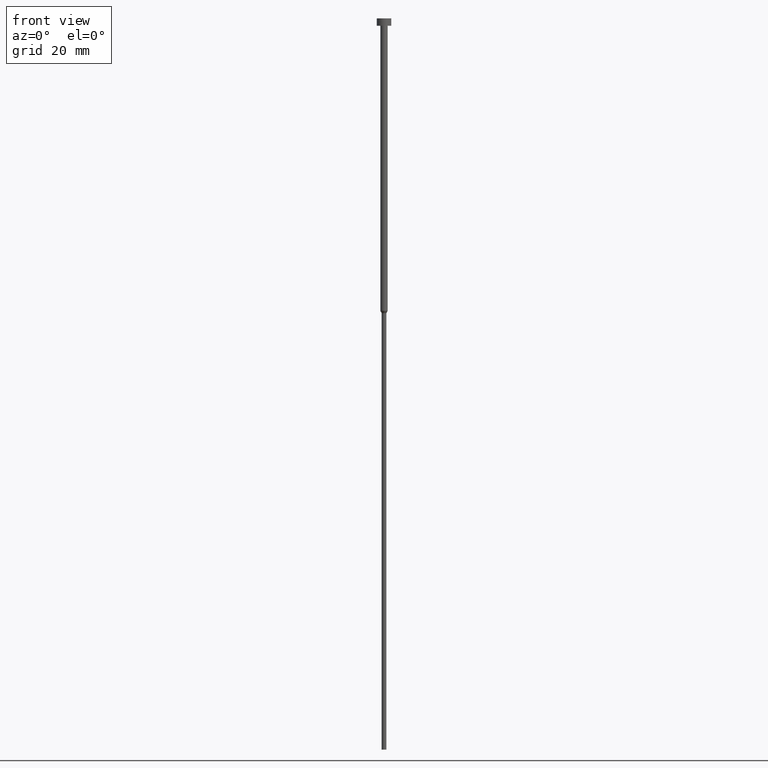
[diagram: clean part render]
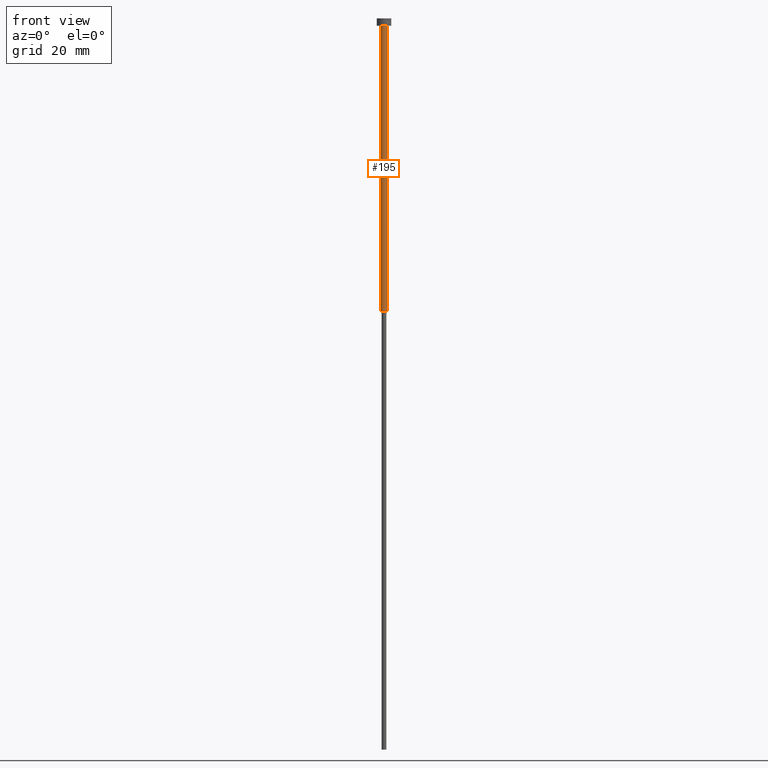
[diagram: same view with one face highlighted and labeled with its STEP entity id]
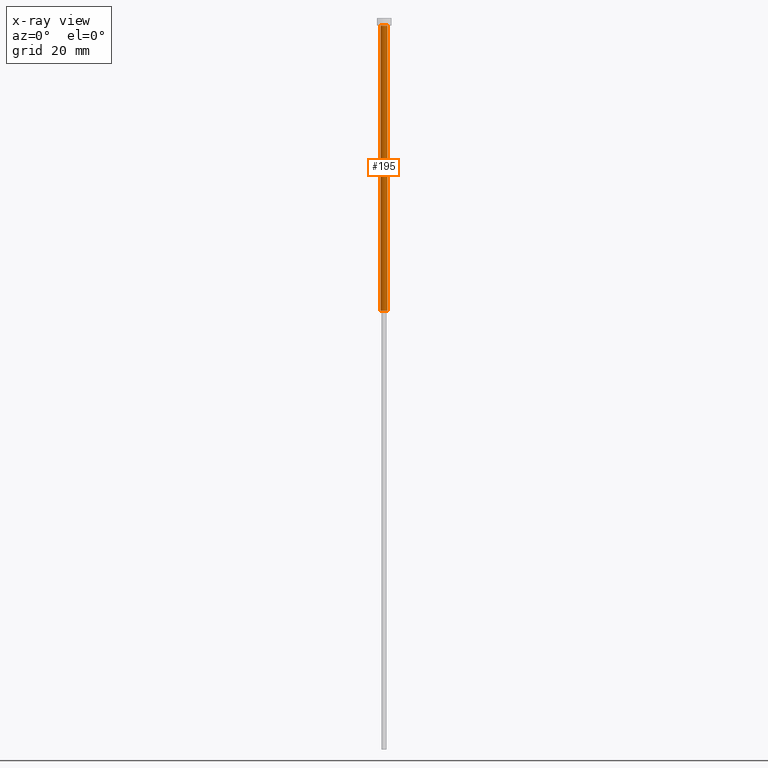
[diagram: x-ray of the same camera — body ghosted, the highlighted face saturated]
A machine part, front view. The second image highlights one B-rep face of the part: STEP entity #195.
The next image is the same camera in x-ray: the body ghosted, the highlighted face saturated — about 0% of this face is hidden behind the body in this view.
In plain terms, the highlighted cylindrical surface (edge-blend (fillet) strip) has radius 1 mm, axis along (-0, -0, 1).
Its self-contained STEP definition (entity closure, byte-faithful):
#4 = ORIENTED_EDGE ( 'NONE', *, *, #129, .T. ) ;
#6 = VERTEX_POINT ( 'NONE', #277 ) ;
#24 = DIRECTION ( 'NONE',  ( 1.000000000000000000, 0.000000000000000000, 0.000000000000000000 ) ) ;
#26 = LINE ( 'NONE', #250, #78 ) ;
#29 = LINE ( 'NONE', #307, #135 ) ;
#44 = CIRCLE ( 'NONE', #247, 1.000000000000003109 ) ;
#52 = ORIENTED_EDGE ( 'NONE', *, *, #167, .F. ) ;
#53 = CARTESIAN_POINT ( 'NONE',  ( 0.000000000000000000, 0.000000000000000000, -2.000000000000000444 ) ) ;
#62 = EDGE_CURVE ( 'NONE', #348, #6, #29, .T. ) ;
#66 = DIRECTION ( 'NONE',  ( 1.000000000000000000, 0.000000000000000000, 0.000000000000000000 ) ) ;
#78 = VECTOR ( 'NONE', #147, 1000.000000000000000 ) ;
#96 = FACE_OUTER_BOUND ( 'NONE', #193, .T. ) ;
#114 = EDGE_CURVE ( 'NONE', #330, #117, #26, .T. ) ;
#117 = VERTEX_POINT ( 'NONE', #257 ) ;
#129 = EDGE_CURVE ( 'NONE', #348, #330, #44, .T. ) ;
#135 = VECTOR ( 'NONE', #221, 1000.000000000000000 ) ;
#143 = DIRECTION ( 'NONE',  ( 1.000000000000000000, 0.000000000000000000, 0.000000000000000000 ) ) ;
#147 = DIRECTION ( 'NONE',  ( -0.000000000000000000, -0.000000000000000000, 1.000000000000000000 ) ) ;
#149 = ORIENTED_EDGE ( 'NONE', *, *, #62, .F. ) ;
#158 = DIRECTION ( 'NONE',  ( -0.000000000000000000, -0.000000000000000000, 1.000000000000000000 ) ) ;
#162 = AXIS2_PLACEMENT_3D ( 'NONE', #339, #158, #66 ) ;
#165 = CARTESIAN_POINT ( 'NONE',  ( 1.000000000000003109, 0.000000000000000000, -80.00000000000000000 ) ) ;
#167 = EDGE_CURVE ( 'NONE', #6, #117, #351, .T. ) ;
#193 = EDGE_LOOP ( 'NONE', ( #149, #4, #264, #52 ) ) ;
#195 = ADVANCED_FACE ( 'NONE', ( #96 ), #289, .T. ) ;
#205 = AXIS2_PLACEMENT_3D ( 'NONE', #53, #224, #143 ) ;
#221 = DIRECTION ( 'NONE',  ( -0.000000000000000000, -0.000000000000000000, 1.000000000000000000 ) ) ;
#224 = DIRECTION ( 'NONE',  ( -0.000000000000000000, -0.000000000000000000, 1.000000000000000000 ) ) ;
#247 = AXIS2_PLACEMENT_3D ( 'NONE', #283, #353, #24 ) ;
#250 = CARTESIAN_POINT ( 'NONE',  ( 1.000000000000003331, 0.000000000000000000, 0.000000000000000000 ) ) ;
#255 = CARTESIAN_POINT ( 'NONE',  ( -1.000000000000003109, 1.224646799147356905E-16, -80.00000000000000000 ) ) ;
#257 = CARTESIAN_POINT ( 'NONE',  ( 1.000000000000003553, 0.000000000000000000, -2.000000000000000444 ) ) ;
#264 = ORIENTED_EDGE ( 'NONE', *, *, #114, .T. ) ;
#277 = CARTESIAN_POINT ( 'NONE',  ( -1.000000000000003553, 1.224646799147357398E-16, -2.000000000000000444 ) ) ;
#283 = CARTESIAN_POINT ( 'NONE',  ( 0.000000000000000000, 0.000000000000000000, -80.00000000000000000 ) ) ;
#289 = CYLINDRICAL_SURFACE ( 'NONE', #162, 1.000000000000003331 ) ;
#307 = CARTESIAN_POINT ( 'NONE',  ( -1.000000000000003331, 1.224646799147357151E-16, 0.000000000000000000 ) ) ;
#330 = VERTEX_POINT ( 'NONE', #165 ) ;
#339 = CARTESIAN_POINT ( 'NONE',  ( 0.000000000000000000, 0.000000000000000000, 0.000000000000000000 ) ) ;
#348 = VERTEX_POINT ( 'NONE', #255 ) ;
#351 = CIRCLE ( 'NONE', #205, 1.000000000000003553 ) ;
#353 = DIRECTION ( 'NONE',  ( -0.000000000000000000, -0.000000000000000000, 1.000000000000000000 ) ) ;